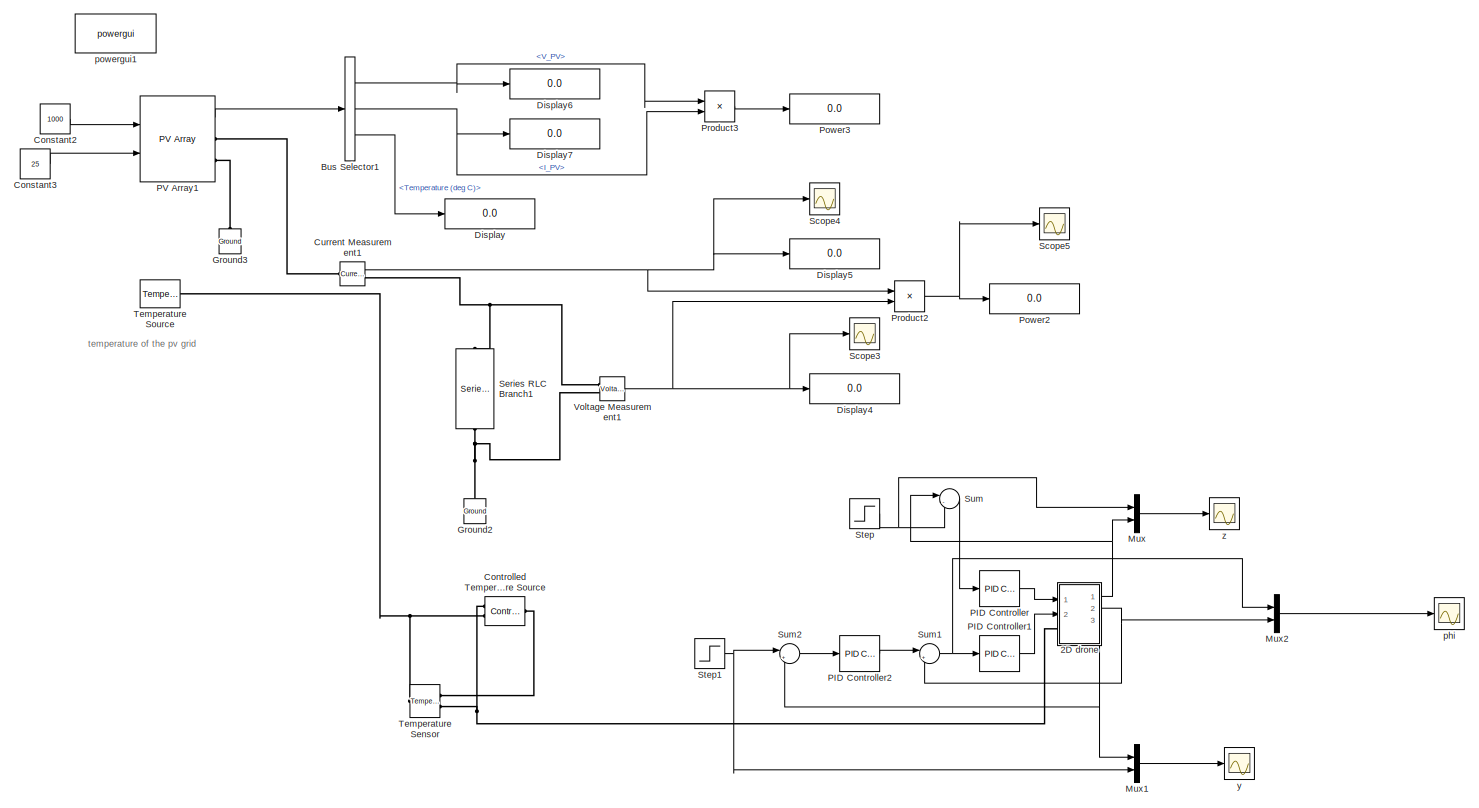
[diagram: root canvas - part 1/1, most of the canvas]
MODEL slx_46ac02af5212
KIND model
CONFIG AbsTol = auto
CONFIG EnableMultiTasking = off
CONFIG FixedStep = auto
CONFIG MaxStep = auto
CONFIG MinStep = auto
CONFIG RelTol = 1e-3
CONFIG SampleTimeConstraint = Unconstrained
CONFIG SolverName = VariableStepAuto
CONFIG StartTime = 0.0
CONFIG StopTime = 10.0
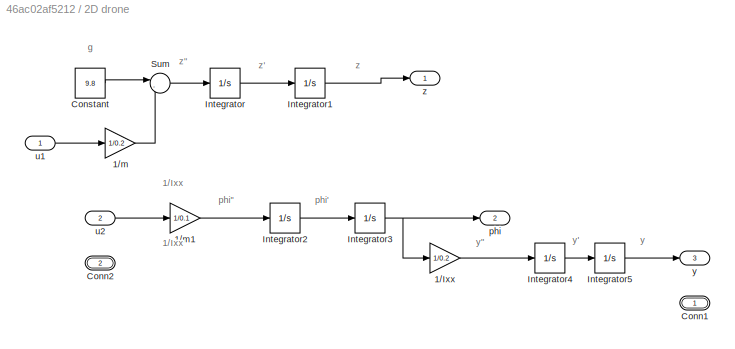
BLOCK [SubSystem] 2D drone
  PortSchema = {"entries":[{"content":{"sides":[{"content":{"connectorIds":["In1","LConn1","In2"]},"type":"ConnectorPlacement.EquallySpacedRectSide","uuid":"b0b73965-2b0a-4392-8c74-958e5326dbf3"},{"content":{"connectorIds":["Out1","Out2","RConn1","Out3"],"side":"RIGHT"},"type":"ConnectorPlacement.EquallySpacedRectSide","uuid":"3cfe24a6-4857-4bab-8724-ac171a4b8d10"},{"content":{"connectorIds":[],"side":"TOP"},"ty...<+278ch>
  Ports = [2, 3, 0, 0, 0, 1, 1]
  RequestExecContextInheritance = off
BLOCK [Gain] 2D drone/1//Ixx
  Gain = 1/0.2
BLOCK [Gain] 2D drone/1//m
  Gain = 1/0.2
BLOCK [Gain] 2D drone/1//m1
  Gain = 1/0.1
BLOCK [PMIOPort] 2D drone/Conn1
  Side = Right
BLOCK [PMIOPort] 2D drone/Conn2
  Port = 2
  Side = Left
BLOCK [Constant] 2D drone/Constant
  Value = 9.8
BLOCK [Integrator] 2D drone/Integrator
  Ports = [1, 1]
BLOCK [Integrator] 2D drone/Integrator1
  Ports = [1, 1]
BLOCK [Integrator] 2D drone/Integrator2
  Ports = [1, 1]
BLOCK [Integrator] 2D drone/Integrator3
  Ports = [1, 1]
BLOCK [Integrator] 2D drone/Integrator4
  Ports = [1, 1]
BLOCK [Integrator] 2D drone/Integrator5
  Ports = [1, 1]
BLOCK [Sum] 2D drone/Sum
  Inputs = |-+
  Ports = [2, 1]
BLOCK [Outport] 2D drone/phi
  Port = 2
BLOCK [Inport] 2D drone/u1
BLOCK [Inport] 2D drone/u2
  Port = 2
BLOCK [Outport] 2D drone/y
  Port = 3
BLOCK [Outport] 2D drone/z
BLOCK [BusSelector] Bus Selector1
  OutputSignals = V_PV,I_PV,Temperature (deg C)
  Ports = [1, 3]
BLOCK [Constant] Constant2
  Value = 1000
BLOCK [Constant] Constant3
  Value = 25
BLOCK [Reference] Controlled Temperature Source  REF=fl_lib/Thermal/Thermal Sources/Controlled
Temperature Source
  Ports = [0, 0, 0, 0, 0, 1, 2]
  SourceBlock = fl_lib/Thermal/Thermal Sources/Controlled\nTemperature Source
  SourceProductBaseCode = SS
  SourceType = Controlled\nTemperature Source
BLOCK [Reference] Current Measurement1  REF=spsCurrentMeasurementLib/Current Measurement
  Ports = [0, 1, 0, 0, 0, 1, 1]
  SourceBlock = spsCurrentMeasurementLib/Current Measurement
  SourceProductBaseCode = PS
  SourceType = Current Measurement
  UserDataPersistent = on
BLOCK [Display] Display
  Decimation = 1
  Ports = [1]
BLOCK [Display] Display4
  Decimation = 1
  Ports = [1]
BLOCK [Display] Display5
  Decimation = 1
  Ports = [1]
BLOCK [Display] Display6
  Decimation = 1
  Ports = [1]
BLOCK [Display] Display7
  Decimation = 1
  Ports = [1]
BLOCK [Reference] Ground2  REF=spsGroundLib/Ground
  NameLocation = right
  Ports = [0, 0, 0, 0, 0, 1]
  SourceBlock = spsGroundLib/Ground
  SourceProductBaseCode = PS
  SourceType = Ground
BLOCK [Reference] Ground3  REF=spsGroundLib/Ground
  NameLocation = right
  Ports = [0, 0, 0, 0, 0, 1]
  SourceBlock = spsGroundLib/Ground
  SourceProductBaseCode = PS
  SourceType = Ground
BLOCK [Mux] Mux
  DisplayOption = bar
  Inputs = 2
  Ports = [2, 1]
BLOCK [Mux] Mux1
  DisplayOption = bar
  Inputs = 2
  Ports = [2, 1]
BLOCK [Mux] Mux2
  DisplayOption = bar
  Inputs = 2
  Ports = [2, 1]
BLOCK [Reference] PID Controller  REF=slpidlib/PID Controller
  Ports = [1, 1]
  SourceBlock = slpidlib/PID Controller
  SourceProductBaseCode = SL
  SourceType = PID 1dof
BLOCK [Reference] PID Controller1  REF=slpidlib/PID Controller
  Ports = [1, 1]
  SourceBlock = slpidlib/PID Controller
  SourceProductBaseCode = SL
  SourceType = PID 1dof
BLOCK [Reference] PID Controller2  REF=slpidlib/PID Controller
  Ports = [1, 1]
  SourceBlock = slpidlib/PID Controller
  SourceProductBaseCode = SL
  SourceType = PID 1dof
BLOCK [Reference] PV Array1  REF=spsPVArrayLib/PV Array
  Ports = [2, 1, 0, 0, 0, 0, 2]
  SourceBlock = spsPVArrayLib/PV Array
  SourceProductBaseCode = PS
  SourceType = PV array
BLOCK [Display] Power2
  Decimation = 1
  Ports = [1]
BLOCK [Display] Power3
  Decimation = 1
  Ports = [1]
BLOCK [Product] Product2
  Ports = [2, 1]
BLOCK [Product] Product3
  Ports = [2, 1]
BLOCK [Scope] Scope3
  Floating = off
  NumInputPorts = 1
  Ports = [1]
  ScopeSpecificationString = Simulink.scopes.TimeScopeBlockCfg('CurrentConfiguration', extmgr.ConfigurationSet(extmgr.Configuration('Core','General UI',true),extmgr.Configuration('Core','Source UI',true),extmgr.Configuration('Sources','WiredSimulink',true,'DataLoggingVariableName','ScopeData6'),extmgr.Configuration('Visuals','Time Domain',true,'SerializedDisplays',{struct('MinYLimReal','26.29432','MaxYLimReal','26.50255','YLa...<+1485ch>
BLOCK [Scope] Scope4
  Floating = off
  NumInputPorts = 1
  Ports = [1]
  ScopeSpecificationString = Simulink.scopes.TimeScopeBlockCfg('CurrentConfiguration', extmgr.ConfigurationSet(extmgr.Configuration('Core','General UI',true),extmgr.Configuration('Core','Source UI',true),extmgr.Configuration('Sources','WiredSimulink',true,'DataLoggingVariableName','ScopeData7'),extmgr.Configuration('Visuals','Time Domain',true,'SerializedDisplays',{struct('MinYLimReal','7.55003','MaxYLimReal','7.60898','YLabe...<+1474ch>
BLOCK [Scope] Scope5
  Floating = off
  NumInputPorts = 1
  Ports = [1]
  ScopeSpecificationString = Simulink.scopes.TimeScopeBlockCfg('CurrentConfiguration', extmgr.ConfigurationSet(extmgr.Configuration('Core','General UI',true),extmgr.Configuration('Core','Source UI',true),extmgr.Configuration('Sources','WiredSimulink',true,'DataLoggingVariableName','ScopeData8'),extmgr.Configuration('Visuals','Time Domain',true,'SerializedDisplays',{struct('MinYLimReal','198.36684','MaxYLimReal','202.6396','YL...<+1475ch>
BLOCK [Reference] Series RLC Branch1  REF=spsSeriesRLCBranchLib/Series RLC Branch
  NameLocation = left
  Ports = [0, 0, 0, 0, 0, 1, 1]
  SourceBlock = spsSeriesRLCBranchLib/Series RLC Branch
  SourceProductBaseCode = PS
  SourceType = Series RLC Branch
BLOCK [Step] Step
  SampleTime = 0
BLOCK [Step] Step1
  SampleTime = 0
BLOCK [Sum] Sum
  Inputs = |-+
  Ports = [2, 1]
BLOCK [Sum] Sum1
  Inputs = |+-
  Ports = [2, 1]
BLOCK [Sum] Sum2
  Inputs = |+-
  Ports = [2, 1]
BLOCK [Reference] Temperature Sensor  REF=fl_lib/Thermal/Thermal Sensors/Temperature Sensor
  Ports = [0, 0, 0, 0, 0, 1, 2]
  SourceBlock = fl_lib/Thermal/Thermal Sensors/Temperature Sensor
  SourceProductBaseCode = SS
  SourceType = Temperature Sensor
BLOCK [Reference] Temperature Source  REF=fl_lib/Thermal/Thermal Sources/Temperature Source
  Ports = [0, 0, 0, 0, 0, 1]
  SourceBlock = fl_lib/Thermal/Thermal Sources/Temperature Source
  SourceProductBaseCode = SS
  SourceType = Temperature Source
BLOCK [Reference] Voltage Measurement1  REF=spsVoltageMeasurementLib/Voltage Measurement
  Ports = [0, 1, 0, 0, 0, 2]
  SourceBlock = spsVoltageMeasurementLib/Voltage Measurement
  SourceProductBaseCode = PS
  SourceType = Voltage Measurement
  UserDataPersistent = on
BLOCK [Scope] phi
  Floating = off
  NumInputPorts = 1
  Ports = [1]
  ScopeSpecificationString = Simulink.scopes.TimeScopeBlockCfg('CurrentConfiguration', extmgr.ConfigurationSet(extmgr.Configuration('Core','General UI',true),extmgr.Configuration('Core','Source UI',true),extmgr.Configuration('Sources','WiredSimulink',true,'DataLoggingVariableName','ScopeData3'),extmgr.Configuration('Visuals','Time Domain',true,'SerializedDisplays',{struct('MinYLimReal','-371463.03705','MaxYLimReal','216261.97...<+1462ch>
BLOCK [Reference] powergui1  REF=spspowerguiLib/powergui
  Ports = []
  Priority = 1
  SourceBlock = spspowerguiLib/powergui
  SourceProductBaseCode = PS
  SourceType = PSB option menu block
BLOCK [Scope] y
  Floating = off
  NumInputPorts = 1
  Ports = [1]
  ScopeSpecificationString = Simulink.scopes.TimeScopeBlockCfg('CurrentConfiguration', extmgr.ConfigurationSet(extmgr.Configuration('Core','General UI',true),extmgr.Configuration('Core','Source UI',true),extmgr.Configuration('Sources','WiredSimulink',true,'DataLoggingVariableName','ScopeData4'),extmgr.Configuration('Visuals','Time Domain',true,'SerializedDisplays',{struct('MinYLimReal','-93145.31111','MaxYLimReal','325925.767...<+1411ch>
BLOCK [Scope] z
  Floating = off
  NumInputPorts = 1
  Ports = [1]
  ScopeSpecificationString = Simulink.scopes.TimeScopeBlockCfg('CurrentConfiguration', extmgr.ConfigurationSet(extmgr.Configuration('Core','General UI',true,'FigureColor',[1 1 1]),extmgr.Configuration('Core','Source UI',true),extmgr.Configuration('Sources','WiredSimulink',true,'DataLoggingVariableName','ScopeData5'),extmgr.Configuration('Visuals','Time Domain',true,'SerializedDisplays',{struct('MinYLimReal','-132.11286','MaxY...<+1492ch>
ANNOTATION (root): temperature of the pv grid
ANNOTATION 2D drone: 1/Ixx
ANNOTATION 2D drone: g
ANNOTATION 2D drone: phi"
ANNOTATION 2D drone: phi'
ANNOTATION 2D drone: y
ANNOTATION 2D drone: y"
ANNOTATION 2D drone: y'
ANNOTATION 2D drone: z
ANNOTATION 2D drone: z"
ANNOTATION 2D drone: z'
LINE 2D drone/1//Ixx:1 -> 2D drone/Integrator4:1
LINE 2D drone/1//m1:1 -> 2D drone/Integrator2:1
LINE 2D drone/1//m:1 -> 2D drone/Sum:2
LINE 2D drone/Constant:1 -> 2D drone/Sum:1
LINE 2D drone/Integrator1:1 -> 2D drone/z:1
LINE 2D drone/Integrator2:1 -> 2D drone/Integrator3:1
NET 2D drone/Integrator3:1 -> 2D drone/1//Ixx:1, 2D drone/phi:1
LINE 2D drone/Integrator4:1 -> 2D drone/Integrator5:1
LINE 2D drone/Integrator5:1 -> 2D drone/y:1
LINE 2D drone/Integrator:1 -> 2D drone/Integrator1:1
LINE 2D drone/Sum:1 -> 2D drone/Integrator:1
LINE 2D drone/u1:1 -> 2D drone/1//m:1
LINE 2D drone/u2:1 -> 2D drone/1//m1:1
NET 2D drone:1 -> Mux:2, Sum:1
NET 2D drone:2 -> Mux2:2, Sum1:2
NET 2D drone:3 -> Mux1:1, Sum2:2
NET Bus Selector1:1 -> Display6:1, Product3:1
NET Bus Selector1:2 -> Display7:1, Product3:2
LINE Bus Selector1:3 -> Display:1
LINE Constant2:1 -> PV Array1:1
LINE Constant3:1 -> PV Array1:2
NET Current Measurement1:1 -> Display5:1, Product2:1, Scope4:1
LINE Mux1:1 -> y:1
LINE Mux2:1 -> phi:1
LINE Mux:1 -> z:1
LINE PID Controller1:1 -> 2D drone:2
LINE PID Controller2:1 -> Sum1:1
LINE PID Controller:1 -> 2D drone:1
LINE PV Array1:1 -> Bus Selector1:1
NET Product2:1 -> Power2:1, Scope5:1
LINE Product3:1 -> Power3:1
NET Step1:1 -> Mux1:2, Sum2:1
NET Step:1 -> Mux:1, Sum:2
NET Sum1:1 -> Mux2:1, PID Controller1:1
LINE Sum2:1 -> PID Controller2:1
LINE Sum:1 -> PID Controller:1
NET Voltage Measurement1:1 -> Display4:1, Product2:2, Scope3:1
PNET net1: 2D drone:LConn1 -- Controlled Temperature Source:RConn1 -- Temperature Sensor:RConn2
PLINE Controlled Temperature Source:LConn1 -- Temperature Sensor:RConn1
PNET net2: Controlled Temperature Source:RConn2 -- Temperature Sensor:LConn1 -- Temperature Source:LConn1
PLINE Current Measurement1:LConn1 -- PV Array1:RConn1
PNET net3: Current Measurement1:RConn1 -- Series RLC Branch1:LConn1 -- Voltage Measurement1:LConn1
PNET net4: Ground2:LConn1 -- Series RLC Branch1:RConn1 -- Voltage Measurement1:LConn2
PLINE Ground3:LConn1 -- PV Array1:RConn2
note: NET lines group one-source signal fan-out (src -> all destinations, sorted); 1:1 wires keep LINE; PNET lines group multi-terminal physical nets as a canonical sorted terminal list (undirected conserving connections); 2-terminal nets keep the pairwise PLINE form
